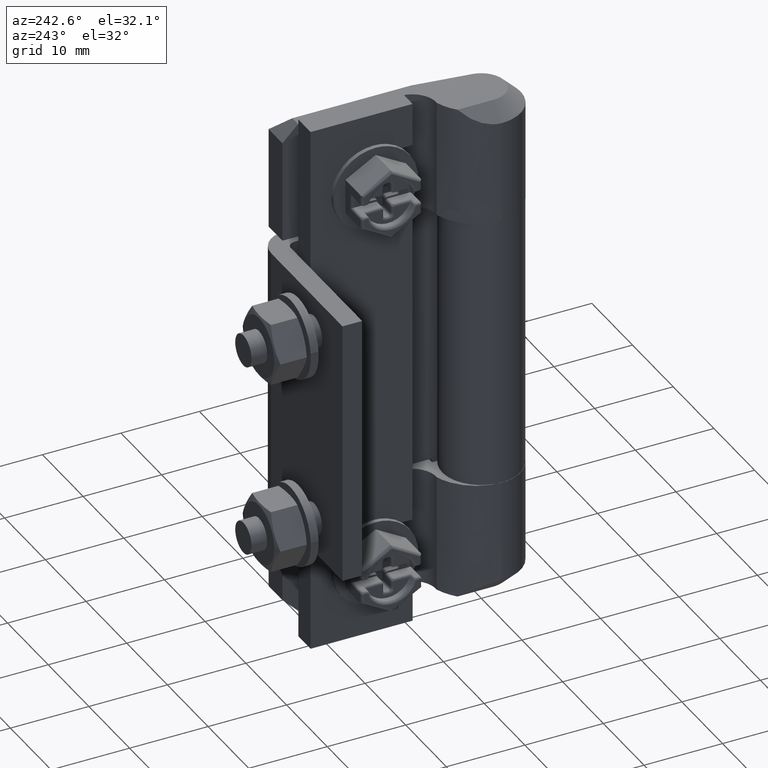
[diagram: clean part render]
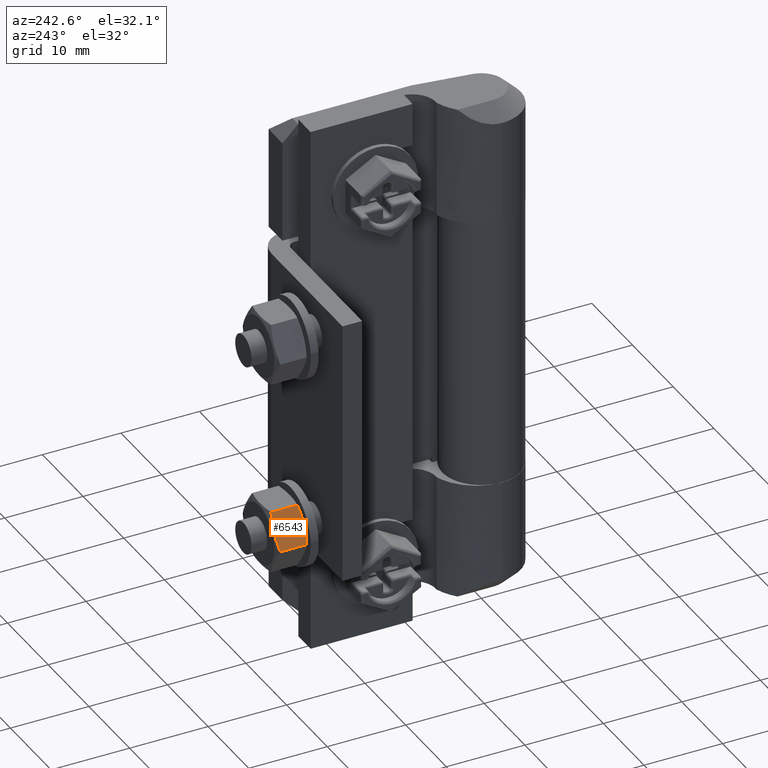
[diagram: same view with one face highlighted and labeled with its STEP entity id]
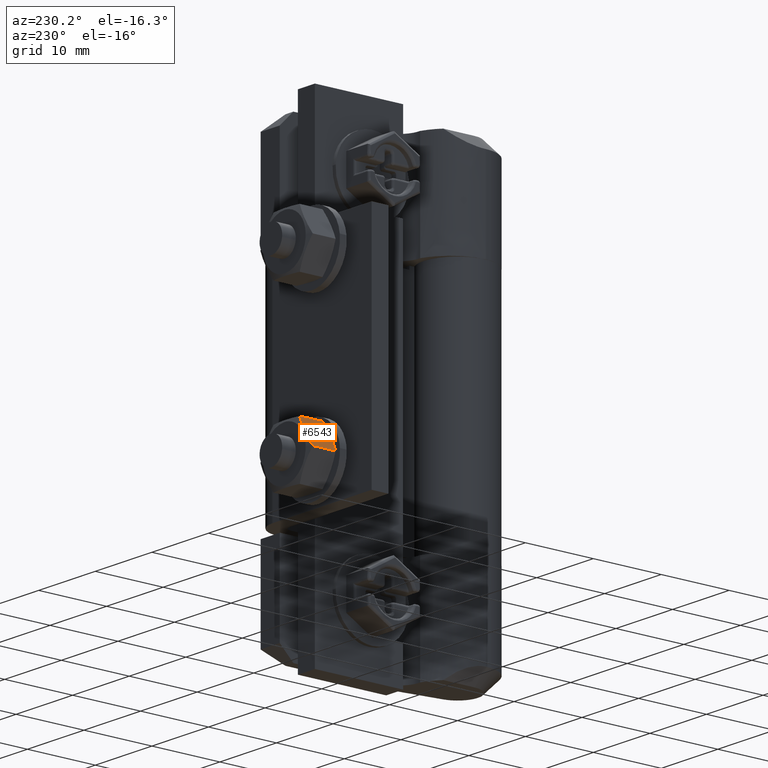
[diagram: same view with one face highlighted and labeled with its STEP entity id]
A machine part, auxiliary view. The second image highlights one B-rep face of the part: STEP entity #6543.
A second angle (auxiliary view) of the same face is appended — the face is thin or edge-on in the first view.
In plain terms, the highlighted face is a freeform B-spline surface patch.
Its self-contained STEP definition (entity closure, byte-faithful):
#5874=CARTESIAN_POINT('',(-11.640599487967320,34.316187074122048,58.500002778601001));
#5875=VERTEX_POINT('',#5874);
#5893=CARTESIAN_POINT('',(-9.331198301518089,34.316218595164599,62.500002968590401));
#5894=VERTEX_POINT('',#5893);
#5895=CARTESIAN_POINT('',(-9.331198301518100,34.316218595164607,62.500002968590422));
#5896=CARTESIAN_POINT('',(-9.523648161380109,34.246169947876943,62.166670033399917));
#5897=CARTESIAN_POINT('',(-9.716098066176325,34.189290116621400,61.833337020381123));
#5898=CARTESIAN_POINT('',(-10.100997998757570,34.111574644127330,61.166670781320633));
#5899=CARTESIAN_POINT('',(-10.485898055957881,34.070381140746633,60.500004326413567));
#5900=CARTESIAN_POINT('',(-10.870798394234450,34.111562327612042,59.833337384668162));
#5901=CARTESIAN_POINT('',(-11.255698857135281,34.189267006779097,59.166670227067193));
#5902=CARTESIAN_POINT('',(-11.448149150082660,34.246142192952483,58.833336541750860));
#5903=CARTESIAN_POINT('',(-11.640599487967251,34.316187074122091,58.500002778600972));
#5904=B_SPLINE_CURVE_WITH_KNOTS('',3,(#5895,#5896,#5897,#5898,#5899,#5900,#5901,#5902,#5903),.UNSPECIFIED.,.F.,.U.,(4,2,1,2,4),(0.0,0.250000000000000,0.500000000000000,0.750000000000000,1.0),.UNSPECIFIED.);
#5905=EDGE_CURVE('',#5894,#5875,#5904,.T.);
#6197=CARTESIAN_POINT('',(-9.331198301518089,37.683781553959648,62.500002968590401));
#6198=VERTEX_POINT('',#6197);
#6208=CARTESIAN_POINT('',(-11.640599487967320,37.683813075002242,58.500002778601001));
#6209=VERTEX_POINT('',#6208);
#6210=CARTESIAN_POINT('',(-11.640599487967251,37.683813075002213,58.500002778600972));
#6211=CARTESIAN_POINT('',(-11.448149150082671,37.753857956171807,58.833336541750853));
#6212=CARTESIAN_POINT('',(-11.255698857135281,37.810733142345207,59.166670227067222));
#6213=CARTESIAN_POINT('',(-10.870798394234439,37.888437821512248,59.833337384668177));
#6214=CARTESIAN_POINT('',(-10.485898055957991,37.929618977071321,60.500004326413382));
#6215=CARTESIAN_POINT('',(-10.100997998757570,37.888425504996960,61.166670781320619));
#6216=CARTESIAN_POINT('',(-9.716098066176329,37.810710032502911,61.833337020381109));
#6217=CARTESIAN_POINT('',(-9.523648161380111,37.753830201247361,62.166670033399917));
#6218=CARTESIAN_POINT('',(-9.331198301518100,37.683781553959683,62.500002968590422));
#6219=B_SPLINE_CURVE_WITH_KNOTS('',3,(#6210,#6211,#6212,#6213,#6214,#6215,#6216,#6217,#6218),.UNSPECIFIED.,.F.,.U.,(4,2,1,2,4),(0.0,0.250000000000000,0.500000000000000,0.750000000000000,1.0),.UNSPECIFIED.);
#6220=EDGE_CURVE('',#6209,#6198,#6219,.T.);
#6517=CARTESIAN_POINT('',(-11.640599487967320,37.683813075002242,58.500002778601001));
#6518=CARTESIAN_POINT('',(-11.640599487967320,34.316187074122048,58.500002778601001));
#6519=QUASI_UNIFORM_CURVE('',1,(#6517,#6518),.UNSPECIFIED.,.F.,.U.);
#6520=EDGE_CURVE('',#6209,#5875,#6519,.T.);
#6528=CARTESIAN_POINT('',(-11.755953560708990,33.900265087303332,58.300203663752313));
#6529=CARTESIAN_POINT('',(-9.215843506108422,33.900265087303332,62.699803335136657));
#6530=CARTESIAN_POINT('',(-11.755953560708990,38.099738664579213,58.300203663752313));
#6531=CARTESIAN_POINT('',(-9.215843506108424,38.099738664579213,62.699803335136657));
#6532=B_SPLINE_SURFACE_WITH_KNOTS('',1,1,((#6528,#6530),(#6529,#6531)),.UNSPECIFIED.,.F.,.F.,.U.,(2,2),(2,2),(0.0,5.080220109200798),(0.0,4.199473577275882),.UNSPECIFIED.);
#6533=CARTESIAN_POINT('',(-9.331198301518089,37.683781553959648,62.500002968590401));
#6534=CARTESIAN_POINT('',(-9.331198301518089,34.316218595164599,62.500002968590401));
#6535=QUASI_UNIFORM_CURVE('',1,(#6533,#6534),.UNSPECIFIED.,.F.,.U.);
#6536=EDGE_CURVE('',#6198,#5894,#6535,.T.);
#6537=ORIENTED_EDGE('',*,*,#6536,.T.);
#6538=ORIENTED_EDGE('',*,*,#5905,.T.);
#6539=ORIENTED_EDGE('',*,*,#6520,.F.);
#6540=ORIENTED_EDGE('',*,*,#6220,.T.);
#6541=EDGE_LOOP('',(#6537,#6538,#6539,#6540));
#6542=FACE_OUTER_BOUND('',#6541,.T.);
#6543=ADVANCED_FACE('',(#6542),#6532,.F.);